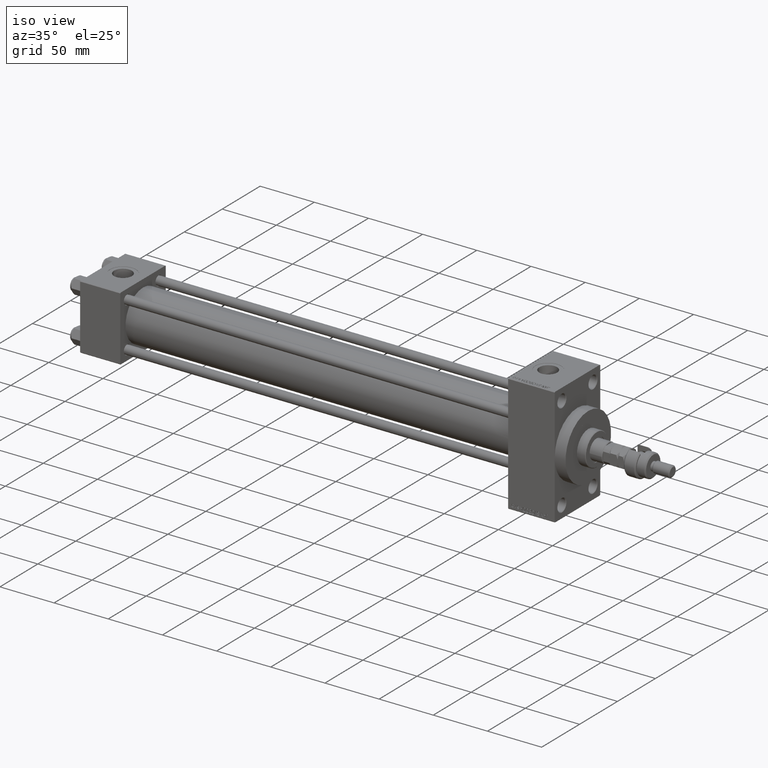
[diagram: clean part render]
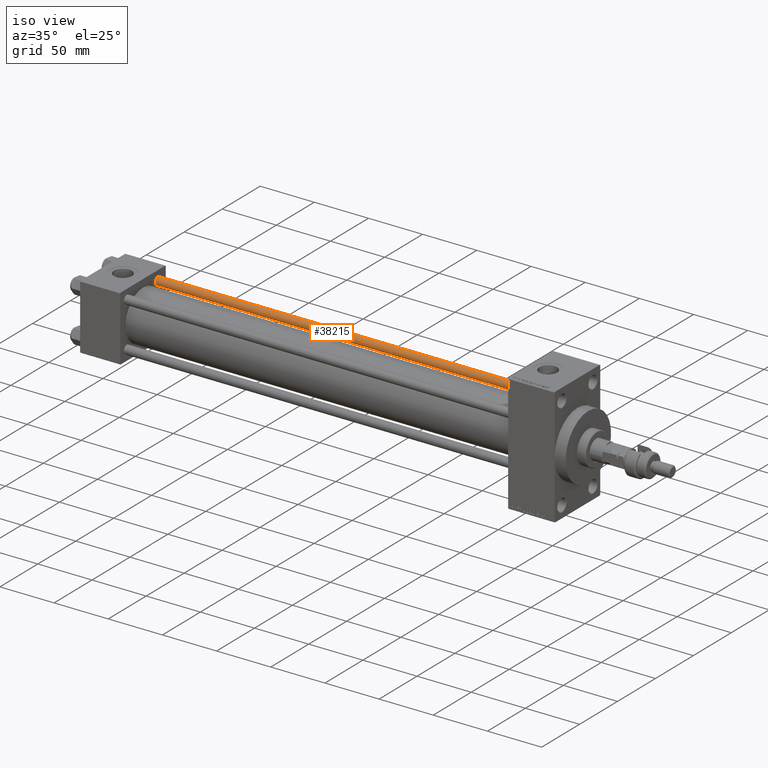
[diagram: same view with one face highlighted and labeled with its STEP entity id]
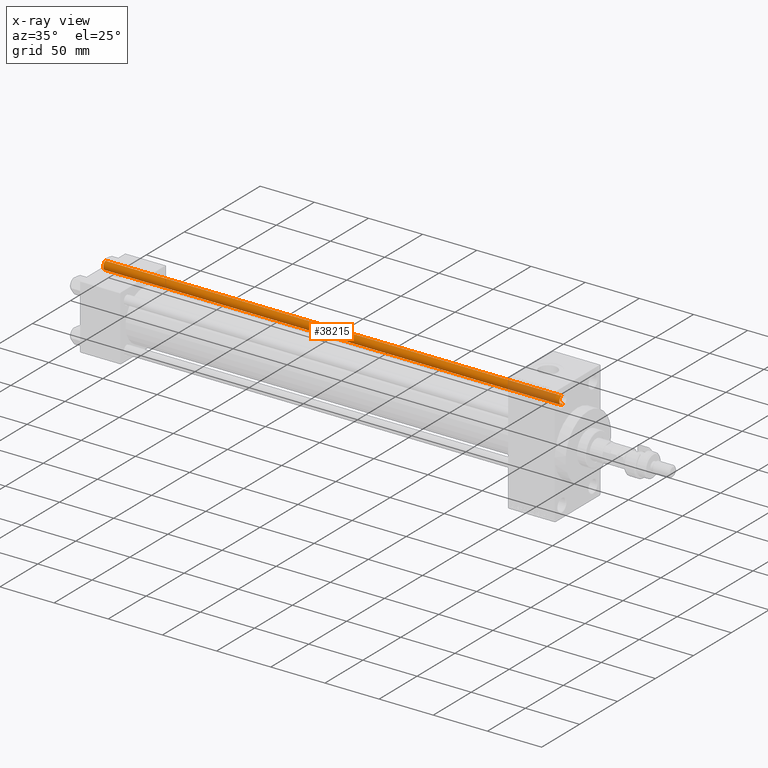
[diagram: x-ray of the same camera — body ghosted, the highlighted face saturated]
A machine part, iso view. The second image highlights one B-rep face of the part: STEP entity #38215.
The next image is the same camera in x-ray: the body ghosted, the highlighted face saturated — about 10% of this face is hidden behind the body in this view.
In plain terms, the highlighted cylindrical surface (edge-blend (fillet) strip) has radius 4 mm, axis along (-1, -0, 0).
Its self-contained STEP definition (entity closure, byte-faithful):
#1286 = AXIS2_PLACEMENT_3D ( 'NONE', #11448, #40152, #3804 ) ;
#1774 = CYLINDRICAL_SURFACE ( 'NONE', #42250, 4.000000000000000000 ) ;
#2024 = AXIS2_PLACEMENT_3D ( 'NONE', #16421, #32738, #4815 ) ;
#2300 = DIRECTION ( 'NONE',  ( -1.000000000000000000, 0.000000000000000000, 0.000000000000000000 ) ) ;
#2404 = VERTEX_POINT ( 'NONE', #36591 ) ;
#3317 = LINE ( 'NONE', #22298, #5313 ) ;
#3804 = DIRECTION ( 'NONE',  ( 1.000000000000000000, 0.000000000000000000, 0.000000000000000000 ) ) ;
#4542 = CIRCLE ( 'NONE', #2024, 4.000000000000000000 ) ;
#4815 = DIRECTION ( 'NONE',  ( 1.000000000000000000, 0.000000000000000000, 0.000000000000000000 ) ) ;
#5313 = VECTOR ( 'NONE', #18876, 1000.000000000000000 ) ;
#6000 = DIRECTION ( 'NONE',  ( -0.000000000000000000, -0.000000000000000000, -1.000000000000000000 ) ) ;
#7689 = VERTEX_POINT ( 'NONE', #14637 ) ;
#11448 = CARTESIAN_POINT ( 'NONE',  ( 0.000000000000000000, 0.000000000000000000, 421.4999999999999432 ) ) ;
#13638 = LINE ( 'NONE', #46057, #14509 ) ;
#14509 = VECTOR ( 'NONE', #6000, 1000.000000000000000 ) ;
#14637 = CARTESIAN_POINT ( 'NONE',  ( 4.000000000000000000, 4.898587196589412829E-16, 421.4999999999999432 ) ) ;
#15044 = EDGE_LOOP ( 'NONE', ( #20755, #25440, #26019, #19183 ) ) ;
#16421 = CARTESIAN_POINT ( 'NONE',  ( 0.000000000000000000, 0.000000000000000000, 0.5000000000001114664 ) ) ;
#18876 = DIRECTION ( 'NONE',  ( -0.000000000000000000, -0.000000000000000000, -1.000000000000000000 ) ) ;
#19183 = ORIENTED_EDGE ( 'NONE', *, *, #33624, .T. ) ;
#19319 = VERTEX_POINT ( 'NONE', #20684 ) ;
#20684 = CARTESIAN_POINT ( 'NONE',  ( -4.000000000000000000, 0.000000000000000000, 421.4999999999999432 ) ) ;
#20755 = ORIENTED_EDGE ( 'NONE', *, *, #30067, .F. ) ;
#22298 = CARTESIAN_POINT ( 'NONE',  ( -4.000000000000000000, 0.000000000000000000, 422.0000000000000000 ) ) ;
#25440 = ORIENTED_EDGE ( 'NONE', *, *, #47700, .T. ) ;
#26019 = ORIENTED_EDGE ( 'NONE', *, *, #42814, .T. ) ;
#26268 = CARTESIAN_POINT ( 'NONE',  ( 0.000000000000000000, 0.000000000000000000, 422.0000000000000000 ) ) ;
#30067 = EDGE_CURVE ( 'NONE', #7689, #31854, #13638, .T. ) ;
#30478 = DIRECTION ( 'NONE',  ( -0.000000000000000000, -0.000000000000000000, -1.000000000000000000 ) ) ;
#31854 = VERTEX_POINT ( 'NONE', #50428 ) ;
#32738 = DIRECTION ( 'NONE',  ( -0.000000000000000000, -0.000000000000000000, 1.000000000000000000 ) ) ;
#33624 = EDGE_CURVE ( 'NONE', #2404, #31854, #4542, .T. ) ;
#36591 = CARTESIAN_POINT ( 'NONE',  ( -4.000000000000000000, 0.000000000000000000, 0.5000000000001114664 ) ) ;
#37477 = CIRCLE ( 'NONE', #1286, 4.000000000000000000 ) ;
#37874 = FACE_OUTER_BOUND ( 'NONE', #15044, .T. ) ;
#38215 = ADVANCED_FACE ( 'NONE', ( #37874 ), #1774, .T. ) ;
#40152 = DIRECTION ( 'NONE',  ( 0.000000000000000000, 0.000000000000000000, -1.000000000000000000 ) ) ;
#42250 = AXIS2_PLACEMENT_3D ( 'NONE', #26268, #30478, #2300 ) ;
#42814 = EDGE_CURVE ( 'NONE', #19319, #2404, #3317, .T. ) ;
#46057 = CARTESIAN_POINT ( 'NONE',  ( 4.000000000000000000, 4.898587196589412829E-16, 422.0000000000000000 ) ) ;
#47700 = EDGE_CURVE ( 'NONE', #7689, #19319, #37477, .T. ) ;
#50428 = CARTESIAN_POINT ( 'NONE',  ( 4.000000000000000000, 4.898587196589412829E-16, 0.5000000000001114664 ) ) ;